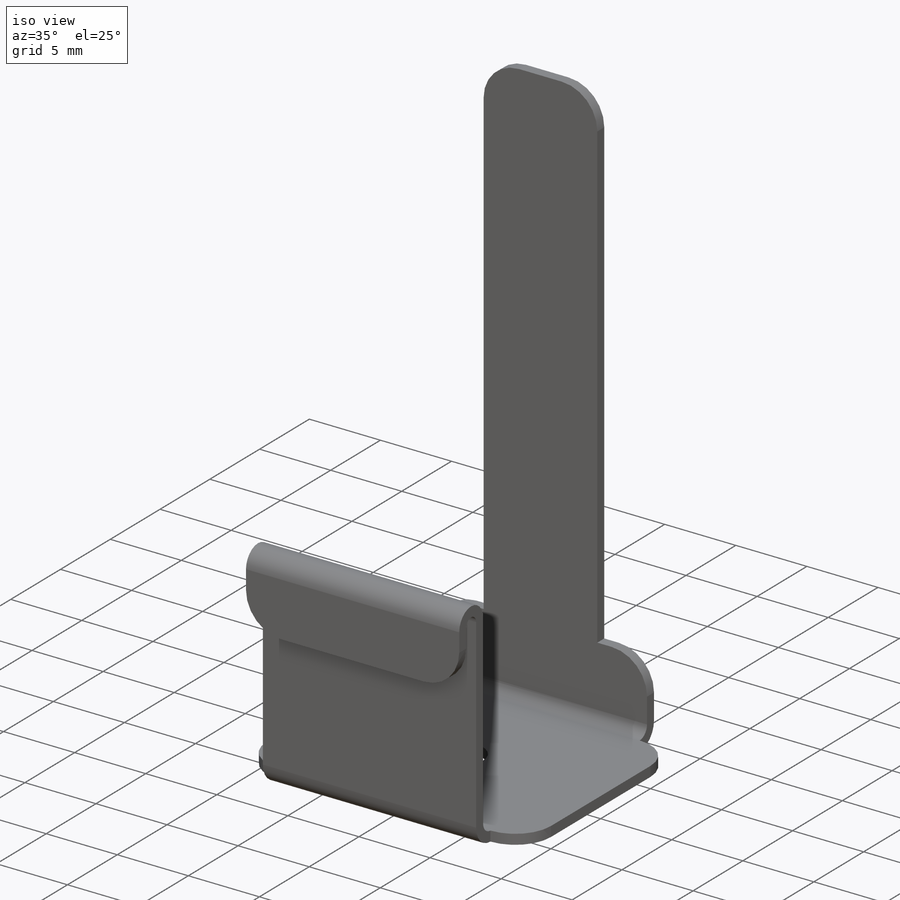
[diagram: iso view]
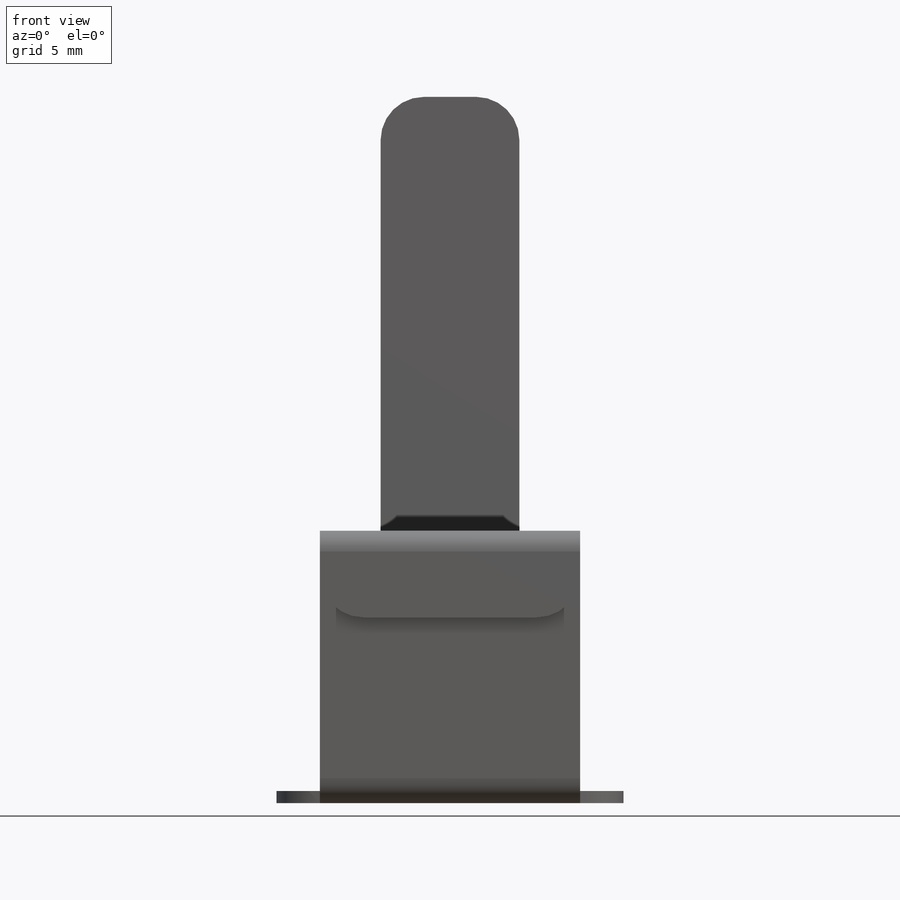
[diagram: front view]
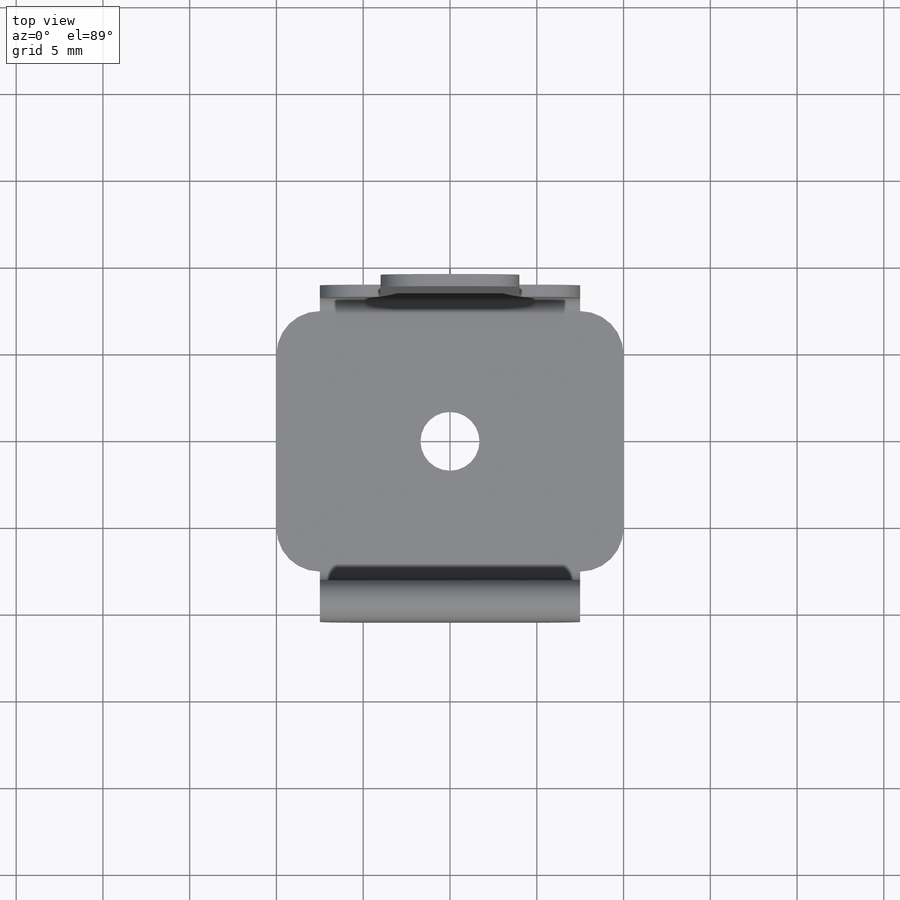
[diagram: top view]
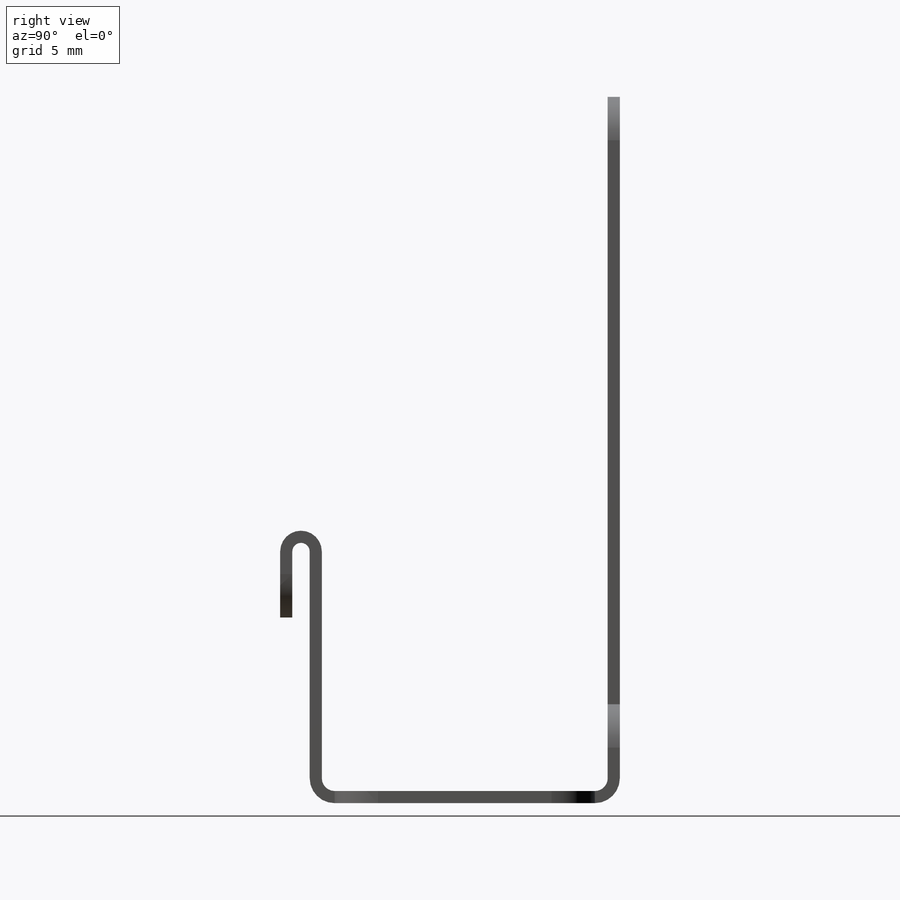
[diagram: right view]
SOLIDWORKS PART (.sldprt)
format: sldprt  version: not decoded by parser v0  size: 302,080 bytes
history: native  units: mm
features: sketch x8, sheet_metal_op x5, material x1, cut_extrude x1 + 3 further entries (+11 scaffold rows collapsed; 1 parser-record rows omitted)
feature tree (30):
  scaffold x11  (default folders/planes/origin — collapsed)
  material  "Plain Carbon Steel"
  sketch  "Sketch1"  dims[D1=20.0mm D2=15.0mm]
  sheet_metal_op  "Sheet-Metal1"
  sheet_metal_op  "Base-Flange1"
  sketch  "Sketch6"  dims[c1.D1=15.0mm c1.D2=5.0mm c2.D1=0.7366mm c2.D4=90.0deg c2.D5=1.0 c2.D8=0.35mm c2.D9=0.35mm c3.D1=0.7366mm c3.D2=500.0mm c3.D3=0.0mm c3.D6=10.0mm c3.D7=5.0mm]
  sketch  "Sketch7"  dims[D1=8.0mm D2=35.0mm]
  sheet_metal_op  "Tab1"  Edge-Flange2=0
  sketch  "Sketch10"  dims[D1=15.0mm D2=15.0mm]
  sheet_metal_op  "EdgeBend2"
  sketch  "Sketch12"
  sheet_metal_op  "HemBend1"
  sketch  "Sketch13"  dims[D1=3.4mm]
  cut_extrude  "Cut-Extrude1"  Depth=2.499mm
  "Flat-Pattern1"
  sketch  "Bend-Lines1"
  sketch  "Bounding-Box1"
  "Flatten-<EdgeBend2>1"
  "Flatten-<HemBend1>1"
  parser-record x1  (decoder bookkeeping rows leaked as tree rows — omitted from the tree; the rows remain in map.json)
decode coverage: 7 of 14 modeling features carry decoded parameters; 3 rows unclassified (native names shown)
note: suppression state not decoded; provenance and decode notes live in map.json
